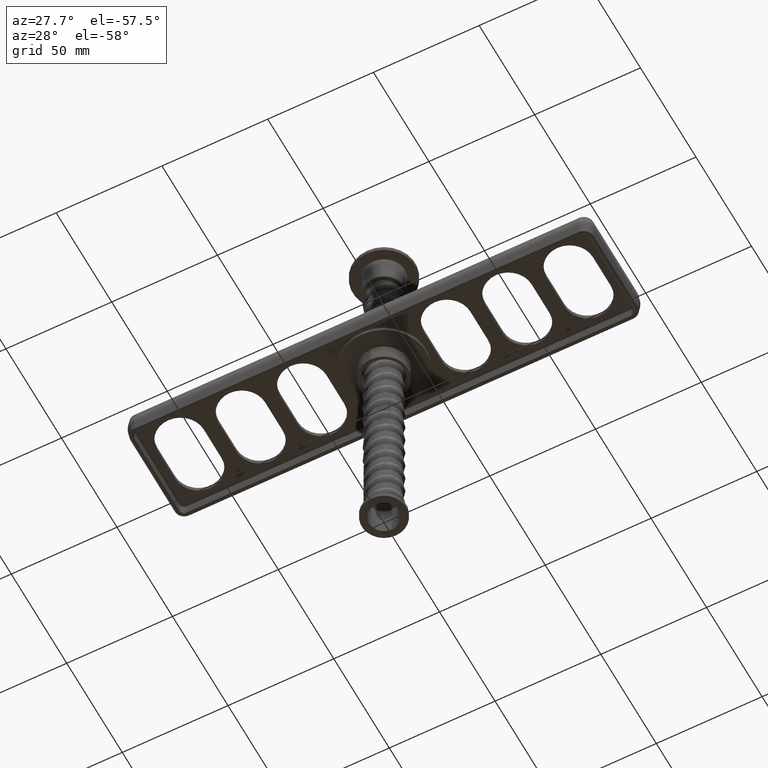
[diagram: clean part render]
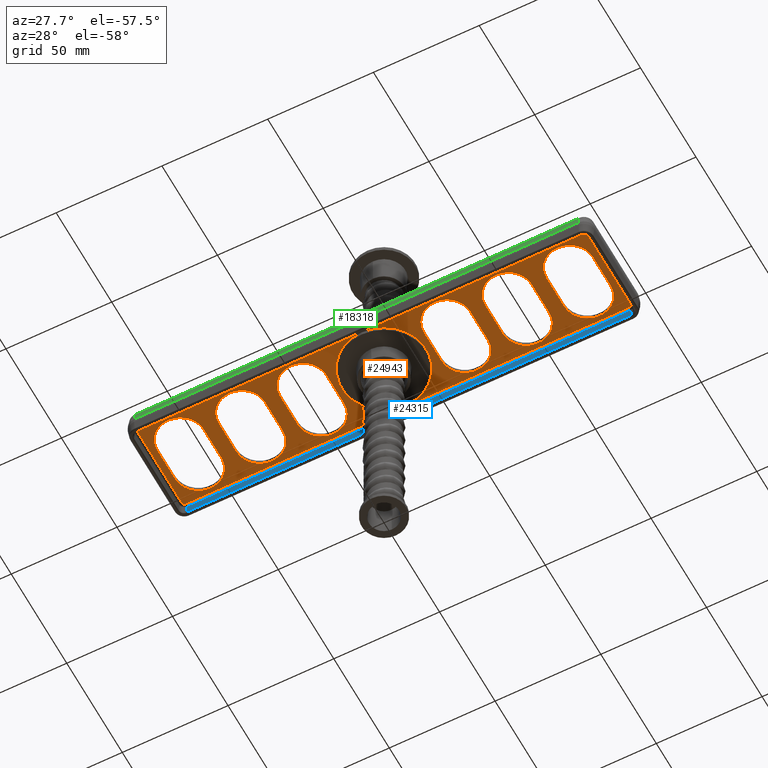
[diagram: same view with three faces highlighted in distinct colors, each labeled with its STEP entity id]
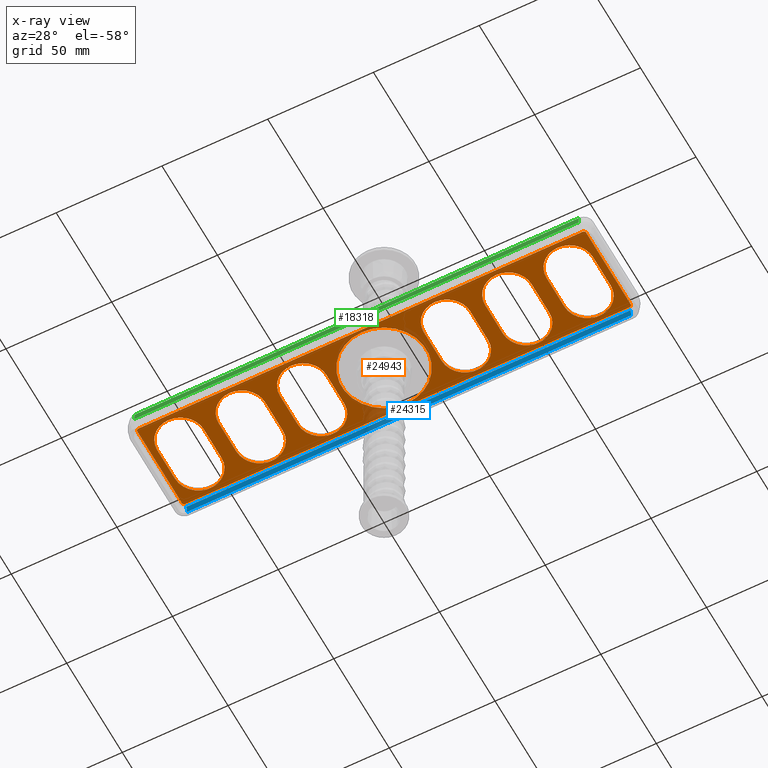
[diagram: x-ray of the same camera — body ghosted, the three highlighted faces saturated]
A machine part, auxiliary view with three faces highlighted in distinct colors.
The next image is the same camera in x-ray (body ghosted, the three faces saturated) — at least one of them is partly hidden behind the body in this view.
Their STEP definitions:

[orange] entity #24943 — the highlighted planar face has unit normal (0, 0, 1).
#105 = LINE ( 'NONE', #20390, #25121 ) ;
#130 = CARTESIAN_POINT ( 'NONE',  ( -80.99999999999998579, -1.000000000000000888, 8.000000000000031974 ) ) ;
#172 = ORIENTED_EDGE ( 'NONE', *, *, #16370, .T. ) ;
#225 = CIRCLE ( 'NONE', #12832, 11.00000000000001066 ) ;
#231 = EDGE_CURVE ( 'NONE', #27735, #936, #6532, .T. ) ;
#270 = DIRECTION ( 'NONE',  ( 0.0000000000000000000, 1.000000000000000000, 0.0000000000000000000 ) ) ;
#273 = DIRECTION ( 'NONE',  ( 0.0000000000000000000, 0.0000000000000000000, 1.000000000000000000 ) ) ;
#392 = DIRECTION ( 'NONE',  ( 0.0000000000000000000, 0.0000000000000000000, -1.000000000000000000 ) ) ;
#395 = CARTESIAN_POINT ( 'NONE',  ( -63.00000000000000000, -1.000000000000000888, -8.000000000000003553 ) ) ;
#413 = CARTESIAN_POINT ( 'NONE',  ( 51.99999999999999289, -1.000000000000000888, 7.999999999999986677 ) ) ;
#553 = CARTESIAN_POINT ( 'NONE',  ( 104.9999999999999858, -1.000000000000000888, -21.13071326218377877 ) ) ;
#727 = CARTESIAN_POINT ( 'NONE',  ( -81.00000000000000000, -1.000000000000000888, 25.00000000000000000 ) ) ;
#734 = CARTESIAN_POINT ( 'NONE',  ( -103.0000000000000284, -1.000000000000000888, 25.00000000000000000 ) ) ;
#925 = CARTESIAN_POINT ( 'NONE',  ( -103.0000000000000284, -1.000000000000000888, 8.000000000000039080 ) ) ;
#936 = VERTEX_POINT ( 'NONE', #26519 ) ;
#998 = DIRECTION ( 'NONE',  ( 0.0000000000000000000, 0.0000000000000000000, 1.000000000000000000 ) ) ;
#1055 = VERTEX_POINT ( 'NONE', #3127 ) ;
#1071 = VECTOR ( 'NONE', #3665, 1000.000000000000000 ) ;
#1085 = AXIS2_PLACEMENT_3D ( 'NONE', #19828, #270, #23110 ) ;
#1404 = AXIS2_PLACEMENT_3D ( 'NONE', #26796, #7253, #30078 ) ;
#1627 = CARTESIAN_POINT ( 'NONE',  ( 63.00000000000000000, -1.000000000000000888, 7.999999999999988454 ) ) ;
#1681 = ORIENTED_EDGE ( 'NONE', *, *, #10312, .T. ) ;
#1736 = DIRECTION ( 'NONE',  ( 0.0000000000000000000, 0.0000000000000000000, 1.000000000000000000 ) ) ;
#1797 = VERTEX_POINT ( 'NONE', #36526 ) ;
#1864 = VECTOR ( 'NONE', #10416, 1000.000000000000000 ) ;
#2006 = EDGE_LOOP ( 'NONE', ( #40214, #5242, #34232, #27029, #38963 ) ) ;
#2098 = LINE ( 'NONE', #26494, #1071 ) ;
#2199 = CARTESIAN_POINT ( 'NONE',  ( 0.0000000000000000000, -1.000000000000000888, 0.0000000000000000000 ) ) ;
#2340 = DIRECTION ( 'NONE',  ( 0.0000000000000000000, 0.0000000000000000000, 1.000000000000000000 ) ) ;
#2402 = VECTOR ( 'NONE', #39021, 1000.000000000000000 ) ;
#2574 = EDGE_LOOP ( 'NONE', ( #2693, #172, #15317, #33315, #8718, #21749, #1681, #6905 ) ) ;
#2612 = CARTESIAN_POINT ( 'NONE',  ( 106.1307132621837752, -1.000000000000000888, 19.99999999999996092 ) ) ;
#2615 = EDGE_CURVE ( 'NONE', #25515, #21208, #24127, .T. ) ;
#2655 = DIRECTION ( 'NONE',  ( -7.364088636058909654E-14, 0.0000000000000000000, 1.000000000000000000 ) ) ;
#2693 = ORIENTED_EDGE ( 'NONE', *, *, #36287, .T. ) ;
#2810 = CARTESIAN_POINT ( 'NONE',  ( -45.00000000000002842, -1.000000000000000888, 25.00000000000000000 ) ) ;
#2944 = CARTESIAN_POINT ( 'NONE',  ( 34.00000000000001421, -1.000000000000000888, 7.999999999999992895 ) ) ;
#3036 = DIRECTION ( 'NONE',  ( -0.0000000000000000000, -1.000000000000000000, -0.0000000000000000000 ) ) ;
#3115 = CARTESIAN_POINT ( 'NONE',  ( 104.9999999999999858, -1.000000000000000888, -21.13071326218377877 ) ) ;
#3127 = CARTESIAN_POINT ( 'NONE',  ( 63.00000000000000000, -1.000000000000000888, 18.99999999999999645 ) ) ;
#3362 = FACE_BOUND ( 'NONE', #7758, .T. ) ;
#3665 = DIRECTION ( 'NONE',  ( 0.0000000000000000000, 0.0000000000000000000, 1.000000000000000000 ) ) ;
#3764 = CARTESIAN_POINT ( 'NONE',  ( -63.00000000000000000, -1.000000000000000888, 8.000000000000017764 ) ) ;
#3779 = CIRCLE ( 'NONE', #15335, 11.00000000000001066 ) ;
#3853 = DIRECTION ( 'NONE',  ( -0.0000000000000000000, -0.0000000000000000000, -1.000000000000000000 ) ) ;
#3855 = DIRECTION ( 'NONE',  ( 0.0000000000000000000, 1.000000000000000000, 0.0000000000000000000 ) ) ;
#3987 = CARTESIAN_POINT ( 'NONE',  ( -91.99999999999998579, -1.000000000000000888, 8.000000000000028422 ) ) ;
#4045 = CARTESIAN_POINT ( 'NONE',  ( 45.00000000000001421, -1.000000000000000888, 7.999999999999994671 ) ) ;
#4230 = EDGE_CURVE ( 'NONE', #936, #27735, #39870, .T. ) ;
#4374 = VERTEX_POINT ( 'NONE', #34367 ) ;
#4384 = FACE_BOUND ( 'NONE', #13128, .T. ) ;
#4593 = ORIENTED_EDGE ( 'NONE', *, *, #12794, .T. ) ;
#4891 = AXIS2_PLACEMENT_3D ( 'NONE', #24789, #5226, #28053 ) ;
#4899 = DIRECTION ( 'NONE',  ( 0.0000000000000000000, 0.0000000000000000000, 1.000000000000000000 ) ) ;
#4943 = EDGE_CURVE ( 'NONE', #31027, #23140, #28162, .T. ) ;
#4996 = CARTESIAN_POINT ( 'NONE',  ( 91.99999999999998579, -1.000000000000000888, -8.000000000000007105 ) ) ;
#5226 = DIRECTION ( 'NONE',  ( 0.0000000000000000000, 1.000000000000000000, 0.0000000000000000000 ) ) ;
#5242 = ORIENTED_EDGE ( 'NONE', *, *, #25906, .T. ) ;
#5286 = VERTEX_POINT ( 'NONE', #24540 ) ;
#5451 = VERTEX_POINT ( 'NONE', #34956 ) ;
#5711 = ORIENTED_EDGE ( 'NONE', *, *, #7895, .T. ) ;
#5791 = DIRECTION ( 'NONE',  ( -2.168404344971011580E-16, 0.0000000000000000000, -1.000000000000000000 ) ) ;
#5799 = DIRECTION ( 'NONE',  ( 0.0000000000000000000, 1.000000000000000000, 0.0000000000000000000 ) ) ;
#6039 = AXIS2_PLACEMENT_3D ( 'NONE', #25351, #5799, #28628 ) ;
#6209 = DIRECTION ( 'NONE',  ( 0.0000000000000000000, 0.0000000000000000000, 1.000000000000000000 ) ) ;
#6428 = CIRCLE ( 'NONE', #37371, 11.00000000000000888 ) ;
#6532 = CIRCLE ( 'NONE', #15522, 20.00000000000000000 ) ;
#6799 = VERTEX_POINT ( 'NONE', #24787 ) ;
#6819 = VERTEX_POINT ( 'NONE', #12219 ) ;
#6833 = CARTESIAN_POINT ( 'NONE',  ( -74.00000000000000000, -1.000000000000000888, 25.00000000000000000 ) ) ;
#6905 = ORIENTED_EDGE ( 'NONE', *, *, #13620, .T. ) ;
#6916 = CARTESIAN_POINT ( 'NONE',  ( -104.9999999999999574, -1.000000000000000888, 21.13071326218380719 ) ) ;
#7049 = DIRECTION ( 'NONE',  ( 0.0000000000000000000, 0.0000000000000000000, 1.000000000000000000 ) ) ;
#7106 = CARTESIAN_POINT ( 'NONE',  ( 51.99999999999999289, -1.000000000000000888, 25.00000000000000000 ) ) ;
#7209 = VERTEX_POINT ( 'NONE', #26732 ) ;
#7253 = DIRECTION ( 'NONE',  ( 0.0000000000000000000, 1.000000000000000000, 0.0000000000000000000 ) ) ;
#7281 = DIRECTION ( 'NONE',  ( 0.0000000000000000000, 0.0000000000000000000, 1.000000000000000000 ) ) ;
#7461 = CIRCLE ( 'NONE', #21101, 11.00000000000001066 ) ;
#7758 = EDGE_LOOP ( 'NONE', ( #24444, #37751, #17385, #8411, #28845 ) ) ;
#7877 = EDGE_CURVE ( 'NONE', #33576, #9660, #35753, .T. ) ;
#7895 = EDGE_CURVE ( 'NONE', #12184, #6799, #2098, .T. ) ;
#8294 = DIRECTION ( 'NONE',  ( 0.0000000000000000000, 0.0000000000000000000, 1.000000000000000000 ) ) ;
#8396 = DIRECTION ( 'NONE',  ( 0.0000000000000000000, 1.000000000000000000, 0.0000000000000000000 ) ) ;
#8411 = ORIENTED_EDGE ( 'NONE', *, *, #39892, .T. ) ;
#8442 = ORIENTED_EDGE ( 'NONE', *, *, #2615, .T. ) ;
#8718 = ORIENTED_EDGE ( 'NONE', *, *, #28184, .T. ) ;
#8957 = EDGE_CURVE ( 'NONE', #12758, #12146, #28609, .T. ) ;
#9094 = CARTESIAN_POINT ( 'NONE',  ( 23.00000000000000355, -1.000000000000000888, 7.999999999999992895 ) ) ;
#9152 = CARTESIAN_POINT ( 'NONE',  ( -34.00000000000001421, -1.000000000000000888, 19.00000000000000355 ) ) ;
#9437 = VECTOR ( 'NONE', #20285, 1000.000000000000000 ) ;
#9484 = DIRECTION ( 'NONE',  ( 0.0000000000000000000, 1.000000000000000000, 0.0000000000000000000 ) ) ;
#9551 = CARTESIAN_POINT ( 'NONE',  ( 23.00000000000000711, -1.000000000000000888, 25.00000000000001776 ) ) ;
#9611 = DIRECTION ( 'NONE',  ( 0.0000000000000000000, 0.0000000000000000000, 1.000000000000000000 ) ) ;
#9626 = CARTESIAN_POINT ( 'NONE',  ( 105.0000000000000000, -1.000000000000000888, -20.00000000000000000 ) ) ;
#9660 = VERTEX_POINT ( 'NONE', #14620 ) ;
#9690 = CARTESIAN_POINT ( 'NONE',  ( 63.00000000000000000, -1.000000000000000888, -8.000000000000003553 ) ) ;
#9691 = CARTESIAN_POINT ( 'NONE',  ( -23.00000000000000000, -1.000000000000000888, -7.999999999999986677 ) ) ;
#9704 = CARTESIAN_POINT ( 'NONE',  ( -63.00000000000000000, -1.000000000000000888, 19.00000000000002842 ) ) ;
#9882 = ORIENTED_EDGE ( 'NONE', *, *, #28993, .T. ) ;
#9981 = CIRCLE ( 'NONE', #30594, 11.00000000000001066 ) ;
#10084 = AXIS2_PLACEMENT_3D ( 'NONE', #40042, #20548, #998 ) ;
#10091 = VERTEX_POINT ( 'NONE', #9152 ) ;
#10165 = CARTESIAN_POINT ( 'NONE',  ( 91.99999999999998579, -1.000000000000000888, 7.999999999999984901 ) ) ;
#10205 = CIRCLE ( 'NONE', #11770, 11.00000000000001066 ) ;
#10312 = EDGE_CURVE ( 'NONE', #12146, #25170, #19404, .T. ) ;
#10316 = LINE ( 'NONE', #2810, #26629 ) ;
#10416 = DIRECTION ( 'NONE',  ( 0.0000000000000000000, 0.0000000000000000000, 1.000000000000000000 ) ) ;
#10512 = LINE ( 'NONE', #11405, #40055 ) ;
#10787 = VECTOR ( 'NONE', #392, 1000.000000000000000 ) ;
#10856 = LINE ( 'NONE', #6833, #18502 ) ;
#11098 = LINE ( 'NONE', #9551, #2402 ) ;
#11405 = CARTESIAN_POINT ( 'NONE',  ( -51.99999999999997868, -1.000000000000000888, 25.00000000000000000 ) ) ;
#11676 = DIRECTION ( 'NONE',  ( 0.0000000000000000000, 0.0000000000000000000, -1.000000000000000000 ) ) ;
#11770 = AXIS2_PLACEMENT_3D ( 'NONE', #4996, #27825, #8294 ) ;
#12050 = FACE_BOUND ( 'NONE', #38830, .T. ) ;
#12074 = EDGE_CURVE ( 'NONE', #9660, #12184, #10205, .T. ) ;
#12146 = VERTEX_POINT ( 'NONE', #14867 ) ;
#12184 = VERTEX_POINT ( 'NONE', #37637 ) ;
#12219 = CARTESIAN_POINT ( 'NONE',  ( 74.00000000000001421, -1.000000000000000888, 7.999999999999989342 ) ) ;
#12580 = LINE ( 'NONE', #7106, #1864 ) ;
#12758 = VERTEX_POINT ( 'NONE', #3115 ) ;
#12794 = EDGE_CURVE ( 'NONE', #29211, #17904, #11098, .T. ) ;
#12799 = VERTEX_POINT ( 'NONE', #9691 ) ;
#12832 = AXIS2_PLACEMENT_3D ( 'NONE', #3987, #26827, #7281 ) ;
#12900 = DIRECTION ( 'NONE',  ( 0.0000000000000000000, 0.0000000000000000000, 1.000000000000000000 ) ) ;
#12929 = LINE ( 'NONE', #6916, #29244 ) ;
#12968 = DIRECTION ( 'NONE',  ( 0.0000000000000000000, 0.0000000000000000000, 1.000000000000000000 ) ) ;
#13019 = VERTEX_POINT ( 'NONE', #39443 ) ;
#13128 = EDGE_LOOP ( 'NONE', ( #25436, #23019, #4593, #19479, #32333 ) ) ;
#13442 = DIRECTION ( 'NONE',  ( 0.0000000000000000000, 0.0000000000000000000, 1.000000000000000000 ) ) ;
#13620 = EDGE_CURVE ( 'NONE', #25170, #17348, #15671, .T. ) ;
#13673 = DIRECTION ( 'NONE',  ( 0.0000000000000000000, 0.0000000000000000000, 1.000000000000000000 ) ) ;
#14150 = DIRECTION ( 'NONE',  ( -0.0000000000000000000, -1.000000000000000000, -0.0000000000000000000 ) ) ;
#14487 = VERTEX_POINT ( 'NONE', #16350 ) ;
#14509 = LINE ( 'NONE', #35026, #36386 ) ;
#14620 = CARTESIAN_POINT ( 'NONE',  ( 103.0000000000000142, -1.000000000000000888, -8.000000000000007105 ) ) ;
#14646 = DIRECTION ( 'NONE',  ( 0.0000000000000000000, 0.0000000000000000000, -1.000000000000000000 ) ) ;
#14857 = VERTEX_POINT ( 'NONE', #17333 ) ;
#14867 = CARTESIAN_POINT ( 'NONE',  ( 106.1307132621837752, -1.000000000000000888, -20.00000000000000355 ) ) ;
#15177 = CIRCLE ( 'NONE', #25692, 11.00000000000001066 ) ;
#15206 = EDGE_CURVE ( 'NONE', #1055, #6819, #6428, .T. ) ;
#15317 = ORIENTED_EDGE ( 'NONE', *, *, #31368, .T. ) ;
#15335 = AXIS2_PLACEMENT_3D ( 'NONE', #9690, #32510, #12968 ) ;
#15522 = AXIS2_PLACEMENT_3D ( 'NONE', #32284, #3036, #9611 ) ;
#15549 = VECTOR ( 'NONE', #30410, 1000.000000000000000 ) ;
#15657 = CIRCLE ( 'NONE', #1085, 11.00000000000000711 ) ;
#15671 = CIRCLE ( 'NONE', #26250, 1.130713262183780099 ) ;
#15838 = AXIS2_PLACEMENT_3D ( 'NONE', #3764, #26595, #7049 ) ;
#16350 = CARTESIAN_POINT ( 'NONE',  ( -103.0000000000000142, -1.000000000000000888, -8.000000000000010658 ) ) ;
#16370 = EDGE_CURVE ( 'NONE', #39835, #1797, #32971, .T. ) ;
#16943 = CIRCLE ( 'NONE', #21392, 11.00000000000001066 ) ;
#17062 = DIRECTION ( 'NONE',  ( 0.0000000000000000000, 1.000000000000000000, 0.0000000000000000000 ) ) ;
#17109 = LINE ( 'NONE', #734, #9437 ) ;
#17133 = CIRCLE ( 'NONE', #18339, 11.00000000000001066 ) ;
#17221 = VERTEX_POINT ( 'NONE', #18549 ) ;
#17333 = CARTESIAN_POINT ( 'NONE',  ( -45.00000000000001421, -1.000000000000000888, -7.999999999999984901 ) ) ;
#17348 = VERTEX_POINT ( 'NONE', #33346 ) ;
#17385 = ORIENTED_EDGE ( 'NONE', *, *, #40316, .T. ) ;
#17522 = EDGE_CURVE ( 'NONE', #5286, #25515, #10512, .T. ) ;
#17528 = VECTOR ( 'NONE', #14646, 1000.000000000000000 ) ;
#17759 = ORIENTED_EDGE ( 'NONE', *, *, #17522, .T. ) ;
#17904 = VERTEX_POINT ( 'NONE', #9094 ) ;
#18209 = CIRCLE ( 'NONE', #1404, 11.00000000000001066 ) ;
#18339 = AXIS2_PLACEMENT_3D ( 'NONE', #10165, #32974, #13442 ) ;
#18385 = DIRECTION ( 'NONE',  ( 0.0000000000000000000, 1.000000000000000000, 0.0000000000000000000 ) ) ;
#18502 = VECTOR ( 'NONE', #273, 1000.000000000000000 ) ;
#18549 = CARTESIAN_POINT ( 'NONE',  ( -91.99999999999998579, -1.000000000000000888, 19.00000000000003908 ) ) ;
#18639 = EDGE_CURVE ( 'NONE', #39853, #30208, #9981, .T. ) ;
#19072 = DIRECTION ( 'NONE',  ( 0.0000000000000000000, 0.0000000000000000000, 1.000000000000000000 ) ) ;
#19377 = ORIENTED_EDGE ( 'NONE', *, *, #231, .F. ) ;
#19404 = LINE ( 'NONE', #42194, #36735 ) ;
#19412 = DIRECTION ( 'NONE',  ( 0.0000000000000000000, 0.0000000000000000000, 1.000000000000000000 ) ) ;
#19479 = ORIENTED_EDGE ( 'NONE', *, *, #40374, .T. ) ;
#19637 = EDGE_CURVE ( 'NONE', #14487, #36627, #17109, .T. ) ;
#19828 = CARTESIAN_POINT ( 'NONE',  ( -34.00000000000001421, -1.000000000000000888, -7.999999999999986677 ) ) ;
#19864 = EDGE_CURVE ( 'NONE', #23092, #1055, #34440, .T. ) ;
#19968 = DIRECTION ( 'NONE',  ( 1.000000000000000000, -0.0000000000000000000, -1.156482317317871478E-16 ) ) ;
#20260 = EDGE_CURVE ( 'NONE', #22604, #5286, #40019, .T. ) ;
#20285 = DIRECTION ( 'NONE',  ( 0.0000000000000000000, 0.0000000000000000000, 1.000000000000000000 ) ) ;
#20390 = CARTESIAN_POINT ( 'NONE',  ( 74.00000000000001421, -1.000000000000000888, 25.00000000000000000 ) ) ;
#20548 = DIRECTION ( 'NONE',  ( -0.0000000000000000000, -1.000000000000000000, -0.0000000000000000000 ) ) ;
#20726 = FACE_BOUND ( 'NONE', #2006, .T. ) ;
#21101 = AXIS2_PLACEMENT_3D ( 'NONE', #27926, #8396, #31219 ) ;
#21208 = VERTEX_POINT ( 'NONE', #25978 ) ;
#21226 = DIRECTION ( 'NONE',  ( 0.0000000000000000000, 1.000000000000000000, 0.0000000000000000000 ) ) ;
#21285 = DIRECTION ( 'NONE',  ( 0.0000000000000000000, 1.000000000000000000, 0.0000000000000000000 ) ) ;
#21392 = AXIS2_PLACEMENT_3D ( 'NONE', #2944, #25766, #6209 ) ;
#21640 = EDGE_CURVE ( 'NONE', #36627, #17221, #225, .T. ) ;
#21749 = ORIENTED_EDGE ( 'NONE', *, *, #8957, .T. ) ;
#21755 = FACE_BOUND ( 'NONE', #39181, .T. ) ;
#21806 = EDGE_CURVE ( 'NONE', #22860, #29606, #32903, .T. ) ;
#21885 = DIRECTION ( 'NONE',  ( 0.0000000000000000000, 1.000000000000000000, 0.0000000000000000000 ) ) ;
#21940 = CARTESIAN_POINT ( 'NONE',  ( -104.9999999999999716, -1.000000000000000888, 21.13071326218380719 ) ) ;
#21963 = ORIENTED_EDGE ( 'NONE', *, *, #28298, .T. ) ;
#22204 = DIRECTION ( 'NONE',  ( -0.0000000000000000000, -1.000000000000000000, -0.0000000000000000000 ) ) ;
#22577 = CARTESIAN_POINT ( 'NONE',  ( -51.99999999999999289, -1.000000000000000888, -7.999999999999979572 ) ) ;
#22604 = VERTEX_POINT ( 'NONE', #9704 ) ;
#22630 = CARTESIAN_POINT ( 'NONE',  ( 74.00000000000001421, -1.000000000000000888, -8.000000000000010658 ) ) ;
#22860 = VERTEX_POINT ( 'NONE', #130 ) ;
#22925 = EDGE_CURVE ( 'NONE', #12799, #14857, #15657, .T. ) ;
#22949 = AXIS2_PLACEMENT_3D ( 'NONE', #9626, #32440, #12900 ) ;
#23019 = ORIENTED_EDGE ( 'NONE', *, *, #28349, .T. ) ;
#23092 = VERTEX_POINT ( 'NONE', #413 ) ;
#23110 = DIRECTION ( 'NONE',  ( 0.0000000000000000000, 0.0000000000000000000, 1.000000000000000000 ) ) ;
#23140 = VERTEX_POINT ( 'NONE', #29794 ) ;
#23230 = CARTESIAN_POINT ( 'NONE',  ( 103.0000000000000142, -1.000000000000000888, 25.00000000000000000 ) ) ;
#23419 = CARTESIAN_POINT ( 'NONE',  ( -106.1307132621837752, -1.000000000000000888, -19.99999999999996092 ) ) ;
#23422 = CARTESIAN_POINT ( 'NONE',  ( -91.99999999999998579, -1.000000000000000888, -8.000000000000007105 ) ) ;
#23530 = CARTESIAN_POINT ( 'NONE',  ( 51.99999999999999289, -1.000000000000000888, -8.000000000000007105 ) ) ;
#23575 = CIRCLE ( 'NONE', #30118, 11.00000000000001066 ) ;
#23678 = DIRECTION ( 'NONE',  ( 0.0000000000000000000, 0.0000000000000000000, -1.000000000000000000 ) ) ;
#23773 = VECTOR ( 'NONE', #3853, 1000.000000000000000 ) ;
#24021 = AXIS2_PLACEMENT_3D ( 'NONE', #2199, #39717, #13673 ) ;
#24127 = CIRCLE ( 'NONE', #24832, 11.00000000000001066 ) ;
#24444 = ORIENTED_EDGE ( 'NONE', *, *, #35785, .T. ) ;
#24461 = DIRECTION ( 'NONE',  ( 0.0000000000000000000, 1.000000000000000000, 0.0000000000000000000 ) ) ;
#24502 = DIRECTION ( 'NONE',  ( 0.0000000000000000000, 0.0000000000000000000, 1.000000000000000000 ) ) ;
#24540 = CARTESIAN_POINT ( 'NONE',  ( -51.99999999999999289, -1.000000000000000888, 7.999999999999998224 ) ) ;
#24787 = CARTESIAN_POINT ( 'NONE',  ( 80.99999999999998579, -1.000000000000000888, 7.999999999999989342 ) ) ;
#24789 = CARTESIAN_POINT ( 'NONE',  ( 63.00000000000000000, -1.000000000000000888, 7.999999999999988454 ) ) ;
#24832 = AXIS2_PLACEMENT_3D ( 'NONE', #395, #21226, #24502 ) ;
#24943 = ADVANCED_FACE ( 'NONE', ( #21755, #29384, #4384, #20726, #12050, #3362, #37035, #28364 ), #34841, .F. ) ;
#24973 = ORIENTED_EDGE ( 'NONE', *, *, #31116, .T. ) ;
#25121 = VECTOR ( 'NONE', #23678, 1000.000000000000000 ) ;
#25127 = ORIENTED_EDGE ( 'NONE', *, *, #40789, .T. ) ;
#25170 = VERTEX_POINT ( 'NONE', #2612 ) ;
#25351 = CARTESIAN_POINT ( 'NONE',  ( -34.00000000000001421, -1.000000000000000888, 7.999999999999992895 ) ) ;
#25436 = ORIENTED_EDGE ( 'NONE', *, *, #36856, .T. ) ;
#25515 = VERTEX_POINT ( 'NONE', #22577 ) ;
#25667 = CARTESIAN_POINT ( 'NONE',  ( 0.0000000000000000000, -1.000000000000000888, -20.00000000000000000 ) ) ;
#25692 = AXIS2_PLACEMENT_3D ( 'NONE', #23422, #3855, #26688 ) ;
#25766 = DIRECTION ( 'NONE',  ( 0.0000000000000000000, 1.000000000000000000, 0.0000000000000000000 ) ) ;
#25842 = CARTESIAN_POINT ( 'NONE',  ( -106.1307132621837752, -1.000000000000000888, -19.99999999999996092 ) ) ;
#25906 = EDGE_CURVE ( 'NONE', #29606, #14487, #15177, .T. ) ;
#25978 = CARTESIAN_POINT ( 'NONE',  ( -74.00000000000001421, -1.000000000000000888, -7.999999999999972466 ) ) ;
#26250 = AXIS2_PLACEMENT_3D ( 'NONE', #41698, #22204, #2655 ) ;
#26494 = CARTESIAN_POINT ( 'NONE',  ( 80.99999999999998579, -1.000000000000000888, 25.00000000000000000 ) ) ;
#26519 = CARTESIAN_POINT ( 'NONE',  ( -2.449293598294706513E-15, -1.000000000000000888, 20.00000000000000000 ) ) ;
#26595 = DIRECTION ( 'NONE',  ( 0.0000000000000000000, 1.000000000000000000, 0.0000000000000000000 ) ) ;
#26611 = ORIENTED_EDGE ( 'NONE', *, *, #4230, .F. ) ;
#26629 = VECTOR ( 'NONE', #19072, 1000.000000000000000 ) ;
#26688 = DIRECTION ( 'NONE',  ( 0.0000000000000000000, 0.0000000000000000000, 1.000000000000000000 ) ) ;
#26732 = CARTESIAN_POINT ( 'NONE',  ( -45.00000000000002842, -1.000000000000000888, 7.999999999999992895 ) ) ;
#26796 = CARTESIAN_POINT ( 'NONE',  ( 34.00000000000001421, -1.000000000000000888, -8.000000000000000000 ) ) ;
#26827 = DIRECTION ( 'NONE',  ( 0.0000000000000000000, 1.000000000000000000, 0.0000000000000000000 ) ) ;
#26982 = ORIENTED_EDGE ( 'NONE', *, *, #20260, .T. ) ;
#27029 = ORIENTED_EDGE ( 'NONE', *, *, #21640, .T. ) ;
#27422 = ORIENTED_EDGE ( 'NONE', *, *, #38761, .T. ) ;
#27735 = VERTEX_POINT ( 'NONE', #25667 ) ;
#27825 = DIRECTION ( 'NONE',  ( 0.0000000000000000000, 1.000000000000000000, 0.0000000000000000000 ) ) ;
#27832 = AXIS2_PLACEMENT_3D ( 'NONE', #33672, #14150, #36937 ) ;
#27926 = CARTESIAN_POINT ( 'NONE',  ( -91.99999999999998579, -1.000000000000000888, 8.000000000000028422 ) ) ;
#27970 = CARTESIAN_POINT ( 'NONE',  ( 103.0000000000000142, -1.000000000000000888, 7.999999999999986677 ) ) ;
#28053 = DIRECTION ( 'NONE',  ( 0.0000000000000000000, 0.0000000000000000000, 1.000000000000000000 ) ) ;
#28162 = CIRCLE ( 'NONE', #10084, 1.130713262183783652 ) ;
#28184 = EDGE_CURVE ( 'NONE', #23140, #12758, #28902, .T. ) ;
#28298 = EDGE_CURVE ( 'NONE', #34875, #23092, #12580, .T. ) ;
#28339 = CARTESIAN_POINT ( 'NONE',  ( 22.99999999999999289, -1.000000000000000888, -8.000000000000000000 ) ) ;
#28349 = EDGE_CURVE ( 'NONE', #13019, #29211, #18209, .T. ) ;
#28364 = FACE_BOUND ( 'NONE', #38942, .T. ) ;
#28492 = CARTESIAN_POINT ( 'NONE',  ( 34.00000000000001421, -1.000000000000000888, 19.00000000000000355 ) ) ;
#28609 = CIRCLE ( 'NONE', #22949, 1.130713262183780099 ) ;
#28628 = DIRECTION ( 'NONE',  ( 0.0000000000000000000, 0.0000000000000000000, 1.000000000000000000 ) ) ;
#28845 = ORIENTED_EDGE ( 'NONE', *, *, #33316, .T. ) ;
#28848 = EDGE_CURVE ( 'NONE', #17221, #22860, #7461, .T. ) ;
#28902 = LINE ( 'NONE', #553, #36539 ) ;
#28993 = EDGE_CURVE ( 'NONE', #31544, #33576, #40086, .T. ) ;
#29017 = CARTESIAN_POINT ( 'NONE',  ( -63.00000000000000000, -1.000000000000000888, 8.000000000000017764 ) ) ;
#29047 = ORIENTED_EDGE ( 'NONE', *, *, #32816, .T. ) ;
#29211 = VERTEX_POINT ( 'NONE', #28339 ) ;
#29244 = VECTOR ( 'NONE', #29740, 1000.000000000000000 ) ;
#29384 = FACE_BOUND ( 'NONE', #35172, .T. ) ;
#29606 = VERTEX_POINT ( 'NONE', #41851 ) ;
#29679 = VERTEX_POINT ( 'NONE', #22630 ) ;
#29740 = DIRECTION ( 'NONE',  ( -1.000000000000000000, -0.0000000000000000000, 1.486905836551548832E-16 ) ) ;
#29794 = CARTESIAN_POINT ( 'NONE',  ( -105.0000000000000142, -1.000000000000000888, -21.13071326218375745 ) ) ;
#29817 = AXIS2_PLACEMENT_3D ( 'NONE', #37879, #18385, #41148 ) ;
#30078 = DIRECTION ( 'NONE',  ( 0.0000000000000000000, 0.0000000000000000000, 1.000000000000000000 ) ) ;
#30118 = AXIS2_PLACEMENT_3D ( 'NONE', #29017, #9484, #32303 ) ;
#30208 = VERTEX_POINT ( 'NONE', #4045 ) ;
#30280 = ORIENTED_EDGE ( 'NONE', *, *, #19864, .T. ) ;
#30410 = DIRECTION ( 'NONE',  ( 0.0000000000000000000, 0.0000000000000000000, -1.000000000000000000 ) ) ;
#30594 = AXIS2_PLACEMENT_3D ( 'NONE', #36568, #17062, #39827 ) ;
#30644 = AXIS2_PLACEMENT_3D ( 'NONE', #40774, #21285, #1736 ) ;
#31027 = VERTEX_POINT ( 'NONE', #25842 ) ;
#31116 = EDGE_CURVE ( 'NONE', #6799, #31544, #17133, .T. ) ;
#31219 = DIRECTION ( 'NONE',  ( 0.0000000000000000000, 0.0000000000000000000, 1.000000000000000000 ) ) ;
#31271 = ORIENTED_EDGE ( 'NONE', *, *, #7877, .T. ) ;
#31368 = EDGE_CURVE ( 'NONE', #1797, #31027, #41070, .T. ) ;
#31544 = VERTEX_POINT ( 'NONE', #33254 ) ;
#32284 = CARTESIAN_POINT ( 'NONE',  ( 0.0000000000000000000, -1.000000000000000888, 0.0000000000000000000 ) ) ;
#32303 = DIRECTION ( 'NONE',  ( 0.0000000000000000000, 0.0000000000000000000, 1.000000000000000000 ) ) ;
#32333 = ORIENTED_EDGE ( 'NONE', *, *, #18639, .T. ) ;
#32440 = DIRECTION ( 'NONE',  ( -0.0000000000000000000, -1.000000000000000000, -0.0000000000000000000 ) ) ;
#32510 = DIRECTION ( 'NONE',  ( 0.0000000000000000000, 1.000000000000000000, 0.0000000000000000000 ) ) ;
#32816 = EDGE_CURVE ( 'NONE', #29679, #34875, #3779, .T. ) ;
#32903 = LINE ( 'NONE', #727, #15549 ) ;
#32971 = CIRCLE ( 'NONE', #27832, 1.130713262183780099 ) ;
#32974 = DIRECTION ( 'NONE',  ( 0.0000000000000000000, 1.000000000000000000, 0.0000000000000000000 ) ) ;
#33254 = CARTESIAN_POINT ( 'NONE',  ( 91.99999999999998579, -1.000000000000000888, 18.99999999999999645 ) ) ;
#33315 = ORIENTED_EDGE ( 'NONE', *, *, #4943, .T. ) ;
#33316 = EDGE_CURVE ( 'NONE', #10091, #5451, #34403, .T. ) ;
#33346 = CARTESIAN_POINT ( 'NONE',  ( 105.0000000000000284, -1.000000000000000888, 21.13071326218377877 ) ) ;
#33576 = VERTEX_POINT ( 'NONE', #27970 ) ;
#33672 = CARTESIAN_POINT ( 'NONE',  ( -105.0000000000000000, -1.000000000000000888, 20.00000000000003197 ) ) ;
#34232 = ORIENTED_EDGE ( 'NONE', *, *, #19637, .T. ) ;
#34367 = CARTESIAN_POINT ( 'NONE',  ( -74.00000000000000000, -1.000000000000000888, 7.999999999999986677 ) ) ;
#34403 = CIRCLE ( 'NONE', #30644, 11.00000000000001066 ) ;
#34440 = CIRCLE ( 'NONE', #4891, 11.00000000000000888 ) ;
#34841 = PLANE ( 'NONE',  #39595 ) ;
#34848 = LINE ( 'NONE', #40537, #17528 ) ;
#34875 = VERTEX_POINT ( 'NONE', #23530 ) ;
#34956 = CARTESIAN_POINT ( 'NONE',  ( -23.00000000000000711, -1.000000000000000888, 7.999999999999992895 ) ) ;
#35026 = CARTESIAN_POINT ( 'NONE',  ( -23.00000000000000711, -1.000000000000000888, 25.00000000000002842 ) ) ;
#35172 = EDGE_LOOP ( 'NONE', ( #36920, #29047, #21963, #30280, #37400 ) ) ;
#35753 = LINE ( 'NONE', #23230, #10787 ) ;
#35785 = EDGE_CURVE ( 'NONE', #5451, #12799, #14509, .T. ) ;
#36287 = EDGE_CURVE ( 'NONE', #17348, #39835, #12929, .T. ) ;
#36386 = VECTOR ( 'NONE', #5791, 1000.000000000000000 ) ;
#36526 = CARTESIAN_POINT ( 'NONE',  ( -106.1307132621837752, -1.000000000000000888, 20.00000000000003908 ) ) ;
#36539 = VECTOR ( 'NONE', #19968, 1000.000000000000000 ) ;
#36568 = CARTESIAN_POINT ( 'NONE',  ( 34.00000000000001421, -1.000000000000000888, 7.999999999999992895 ) ) ;
#36627 = VERTEX_POINT ( 'NONE', #925 ) ;
#36735 = VECTOR ( 'NONE', #19412, 1000.000000000000000 ) ;
#36856 = EDGE_CURVE ( 'NONE', #30208, #13019, #34848, .T. ) ;
#36920 = ORIENTED_EDGE ( 'NONE', *, *, #39014, .T. ) ;
#36937 = DIRECTION ( 'NONE',  ( 0.0000000000000000000, 0.0000000000000000000, 1.000000000000000000 ) ) ;
#37035 = FACE_OUTER_BOUND ( 'NONE', #2574, .T. ) ;
#37343 = CIRCLE ( 'NONE', #6039, 11.00000000000001066 ) ;
#37371 = AXIS2_PLACEMENT_3D ( 'NONE', #1627, #24461, #4899 ) ;
#37400 = ORIENTED_EDGE ( 'NONE', *, *, #15206, .T. ) ;
#37637 = CARTESIAN_POINT ( 'NONE',  ( 80.99999999999998579, -1.000000000000000888, -8.000000000000010658 ) ) ;
#37751 = ORIENTED_EDGE ( 'NONE', *, *, #22925, .T. ) ;
#37879 = CARTESIAN_POINT ( 'NONE',  ( 91.99999999999998579, -1.000000000000000888, 7.999999999999984901 ) ) ;
#38761 = EDGE_CURVE ( 'NONE', #21208, #4374, #10856, .T. ) ;
#38830 = EDGE_LOOP ( 'NONE', ( #17759, #8442, #27422, #25127, #26982 ) ) ;
#38942 = EDGE_LOOP ( 'NONE', ( #19377, #26611 ) ) ;
#38963 = ORIENTED_EDGE ( 'NONE', *, *, #28848, .T. ) ;
#39014 = EDGE_CURVE ( 'NONE', #6819, #29679, #105, .T. ) ;
#39021 = DIRECTION ( 'NONE',  ( 2.168404344971009854E-16, 0.0000000000000000000, 1.000000000000000000 ) ) ;
#39181 = EDGE_LOOP ( 'NONE', ( #5711, #24973, #9882, #31271, #40884 ) ) ;
#39443 = CARTESIAN_POINT ( 'NONE',  ( 45.00000000000001421, -1.000000000000000888, -8.000000000000005329 ) ) ;
#39595 = AXIS2_PLACEMENT_3D ( 'NONE', #41377, #21885, #2340 ) ;
#39717 = DIRECTION ( 'NONE',  ( -0.0000000000000000000, -1.000000000000000000, -0.0000000000000000000 ) ) ;
#39827 = DIRECTION ( 'NONE',  ( 0.0000000000000000000, 0.0000000000000000000, 1.000000000000000000 ) ) ;
#39835 = VERTEX_POINT ( 'NONE', #21940 ) ;
#39853 = VERTEX_POINT ( 'NONE', #28492 ) ;
#39870 = CIRCLE ( 'NONE', #24021, 20.00000000000000000 ) ;
#39892 = EDGE_CURVE ( 'NONE', #7209, #10091, #37343, .T. ) ;
#40019 = CIRCLE ( 'NONE', #15838, 11.00000000000001066 ) ;
#40042 = CARTESIAN_POINT ( 'NONE',  ( -105.0000000000000000, -1.000000000000000888, -19.99999999999997513 ) ) ;
#40055 = VECTOR ( 'NONE', #11676, 1000.000000000000000 ) ;
#40086 = CIRCLE ( 'NONE', #29817, 11.00000000000001066 ) ;
#40214 = ORIENTED_EDGE ( 'NONE', *, *, #21806, .T. ) ;
#40316 = EDGE_CURVE ( 'NONE', #14857, #7209, #10316, .T. ) ;
#40374 = EDGE_CURVE ( 'NONE', #17904, #39853, #16943, .T. ) ;
#40537 = CARTESIAN_POINT ( 'NONE',  ( 45.00000000000001421, -1.000000000000000888, 25.00000000000000000 ) ) ;
#40774 = CARTESIAN_POINT ( 'NONE',  ( -34.00000000000001421, -1.000000000000000888, 7.999999999999992895 ) ) ;
#40789 = EDGE_CURVE ( 'NONE', #4374, #22604, #23575, .T. ) ;
#40884 = ORIENTED_EDGE ( 'NONE', *, *, #12074, .T. ) ;
#41070 = LINE ( 'NONE', #23419, #23773 ) ;
#41148 = DIRECTION ( 'NONE',  ( 0.0000000000000000000, 0.0000000000000000000, 1.000000000000000000 ) ) ;
#41377 = CARTESIAN_POINT ( 'NONE',  ( 110.0000000000000000, -1.000000000000000888, 25.00000000000000000 ) ) ;
#41698 = CARTESIAN_POINT ( 'NONE',  ( 105.0000000000000000, -1.000000000000000888, 20.00000000000000000 ) ) ;
#41851 = CARTESIAN_POINT ( 'NONE',  ( -80.99999999999998579, -1.000000000000000888, -8.000000000000010658 ) ) ;
#42194 = CARTESIAN_POINT ( 'NONE',  ( 106.1307132621837752, -1.000000000000000888, 25.00000000000000000 ) ) ;

[blue] entity #24315 — the highlighted planar face has unit normal (-0, 0.9903, 0.1392).
#363 = CARTESIAN_POINT ( 'NONE',  ( 104.9999999999999858, -1.000000000000000888, -22.00000000000000711 ) ) ;
#673 = ORIENTED_EDGE ( 'NONE', *, *, #6415, .F. ) ;
#1104 = CARTESIAN_POINT ( 'NONE',  ( 105.0000000000000000, -5.210463401687986718, -22.59174204095712568 ) ) ;
#2013 = DIRECTION ( 'NONE',  ( -1.000000000000000000, -2.998882852372652466E-35, 1.156482317317871478E-16 ) ) ;
#2086 = ORIENTED_EDGE ( 'NONE', *, *, #8078, .F. ) ;
#2743 = CARTESIAN_POINT ( 'NONE',  ( -105.0000000000000142, -1.000000000000000888, -21.99999999999998224 ) ) ;
#4021 = VERTEX_POINT ( 'NONE', #23658 ) ;
#4753 = VERTEX_POINT ( 'NONE', #12537 ) ;
#6415 = EDGE_CURVE ( 'NONE', #4753, #10194, #40356, .T. ) ;
#7350 = VECTOR ( 'NONE', #2013, 1000.000000000000000 ) ;
#8078 = EDGE_CURVE ( 'NONE', #10194, #4021, #26071, .T. ) ;
#9342 = ORIENTED_EDGE ( 'NONE', *, *, #15497, .T. ) ;
#9431 = CARTESIAN_POINT ( 'NONE',  ( 105.0000000000000000, -5.210463401687986718, -22.59174204095712568 ) ) ;
#10194 = VERTEX_POINT ( 'NONE', #9431 ) ;
#10224 = DIRECTION ( 'NONE',  ( -1.145227510904143834E-16, 0.1391731009600697122, -0.9902680687415698069 ) ) ;
#12537 = CARTESIAN_POINT ( 'NONE',  ( 104.9999999999999858, -1.860826899039928817, -22.12098133092534979 ) ) ;
#13087 = LINE ( 'NONE', #2743, #21766 ) ;
#15497 = EDGE_CURVE ( 'NONE', #19781, #4021, #13087, .T. ) ;
#15589 = AXIS2_PLACEMENT_3D ( 'NONE', #363, #10224, #33034 ) ;
#19103 = LINE ( 'NONE', #24844, #7350 ) ;
#19781 = VERTEX_POINT ( 'NONE', #30116 ) ;
#20652 = DIRECTION ( 'NONE',  ( -1.000000000000000000, 0.0000000000000000000, 1.156482317317871478E-16 ) ) ;
#21766 = VECTOR ( 'NONE', #22289, 999.9999999999998863 ) ;
#22289 = DIRECTION ( 'NONE',  ( 1.012298032875185536E-16, -0.9902680687415698069, -0.1391731009600697122 ) ) ;
#23061 = PLANE ( 'NONE',  #15589 ) ;
#23658 = CARTESIAN_POINT ( 'NONE',  ( -105.0000000000000000, -5.210463401687986718, -22.59174204095710081 ) ) ;
#24315 = ADVANCED_FACE ( 'NONE', ( #32467 ), #23061, .F. ) ;
#24844 = CARTESIAN_POINT ( 'NONE',  ( -105.0000000000000142, -1.860826899039928817, -22.12098133092532493 ) ) ;
#26071 = LINE ( 'NONE', #1104, #27097 ) ;
#27097 = VECTOR ( 'NONE', #20652, 1000.000000000000000 ) ;
#29668 = VECTOR ( 'NONE', #40720, 999.9999999999998863 ) ;
#30116 = CARTESIAN_POINT ( 'NONE',  ( -105.0000000000000142, -1.860826899039928817, -22.12098133092532493 ) ) ;
#32467 = FACE_OUTER_BOUND ( 'NONE', #41253, .T. ) ;
#32789 = ORIENTED_EDGE ( 'NONE', *, *, #33793, .T. ) ;
#33034 = DIRECTION ( 'NONE',  ( 0.0000000000000000000, 0.9902680687415698069, 0.1391731009600697122 ) ) ;
#33793 = EDGE_CURVE ( 'NONE', #4753, #19781, #19103, .T. ) ;
#34722 = CARTESIAN_POINT ( 'NONE',  ( 104.9999999999999858, -1.000000000000000888, -22.00000000000000711 ) ) ;
#40356 = LINE ( 'NONE', #34722, #29668 ) ;
#40720 = DIRECTION ( 'NONE',  ( 1.012298032875185536E-16, -0.9902680687415698069, -0.1391731009600697122 ) ) ;
#41253 = EDGE_LOOP ( 'NONE', ( #673, #32789, #9342, #2086 ) ) ;

[green] entity #18318 — the highlighted planar face has unit normal (-0, 0.9903, -0.1392).
#3201 = ORIENTED_EDGE ( 'NONE', *, *, #33855, .T. ) ;
#3601 = VERTEX_POINT ( 'NONE', #11522 ) ;
#6307 = LINE ( 'NONE', #31403, #39980 ) ;
#7267 = VECTOR ( 'NONE', #20869, 999.9999999999998863 ) ;
#8732 = DIRECTION ( 'NONE',  ( 1.000000000000000000, 0.0000000000000000000, -1.486905836551548832E-16 ) ) ;
#9887 = EDGE_CURVE ( 'NONE', #19689, #3601, #31171, .T. ) ;
#10586 = CARTESIAN_POINT ( 'NONE',  ( -104.9999999999999858, 5.210463401687986718, 24.40825795904293116 ) ) ;
#11069 = CARTESIAN_POINT ( 'NONE',  ( 105.0000000000000000, 1.000000000000000888, 25.00000000000000000 ) ) ;
#11522 = CARTESIAN_POINT ( 'NONE',  ( 105.0000000000000142, 5.210463401687986718, 24.40825795904289919 ) ) ;
#12045 = CARTESIAN_POINT ( 'NONE',  ( -104.9999999999999858, 1.000000000000000888, 25.00000000000003553 ) ) ;
#13074 = LINE ( 'NONE', #12045, #38041 ) ;
#13221 = DIRECTION ( 'NONE',  ( 0.0000000000000000000, 0.9902680687415701399, -0.1391731009600664926 ) ) ;
#18318 = ADVANCED_FACE ( 'NONE', ( #37005 ), #35870, .F. ) ;
#18987 = ORIENTED_EDGE ( 'NONE', *, *, #24895, .T. ) ;
#19689 = VERTEX_POINT ( 'NONE', #10586 ) ;
#20573 = VERTEX_POINT ( 'NONE', #11069 ) ;
#20869 = DIRECTION ( 'NONE',  ( 1.182735925493319255E-16, 0.9902680687415702510, -0.1391731009600665203 ) ) ;
#21011 = CARTESIAN_POINT ( 'NONE',  ( -104.9999999999999858, 5.210463401687986718, 24.40825795904293116 ) ) ;
#24895 = EDGE_CURVE ( 'NONE', #28456, #20573, #13074, .T. ) ;
#25270 = CARTESIAN_POINT ( 'NONE',  ( -104.9999999999999858, 5.210463401687986718, 24.40825795904293116 ) ) ;
#28456 = VERTEX_POINT ( 'NONE', #39881 ) ;
#30125 = VECTOR ( 'NONE', #8732, 1000.000000000000000 ) ;
#30181 = ORIENTED_EDGE ( 'NONE', *, *, #9887, .F. ) ;
#31171 = LINE ( 'NONE', #25270, #30125 ) ;
#31403 = CARTESIAN_POINT ( 'NONE',  ( 105.0000000000000142, 5.210463401687986718, 24.40825795904289919 ) ) ;
#31588 = DIRECTION ( 'NONE',  ( 1.000000000000000000, 0.0000000000000000000, -1.486905836551548832E-16 ) ) ;
#32756 = DIRECTION ( 'NONE',  ( -1.472435371162471312E-16, -0.1391731009600664926, -0.9902680687415701399 ) ) ;
#32766 = AXIS2_PLACEMENT_3D ( 'NONE', #39126, #32756, #13221 ) ;
#33310 = LINE ( 'NONE', #21011, #7267 ) ;
#33855 = EDGE_CURVE ( 'NONE', #20573, #3601, #6307, .T. ) ;
#34654 = DIRECTION ( 'NONE',  ( 1.182735925493319255E-16, 0.9902680687415702510, -0.1391731009600665203 ) ) ;
#35870 = PLANE ( 'NONE',  #32766 ) ;
#37005 = FACE_OUTER_BOUND ( 'NONE', #39576, .T. ) ;
#37724 = EDGE_CURVE ( 'NONE', #28456, #19689, #33310, .T. ) ;
#38041 = VECTOR ( 'NONE', #31588, 1000.000000000000000 ) ;
#38611 = ORIENTED_EDGE ( 'NONE', *, *, #37724, .F. ) ;
#39126 = CARTESIAN_POINT ( 'NONE',  ( -104.9999999999999858, 5.210463401687986718, 24.40825795904293116 ) ) ;
#39576 = EDGE_LOOP ( 'NONE', ( #38611, #18987, #3201, #30181 ) ) ;
#39881 = CARTESIAN_POINT ( 'NONE',  ( -104.9999999999999716, 1.000000000000000888, 25.00000000000000000 ) ) ;
#39980 = VECTOR ( 'NONE', #34654, 999.9999999999998863 ) ;